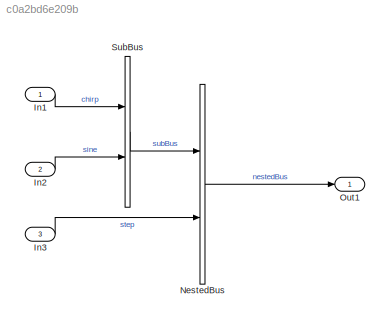
MODEL slx_c0a2bd6e209b
KIND model
CONFIG AbsTol = auto
CONFIG EnableMultiTasking = off
CONFIG FixedStep = 0.200000
CONFIG MaxStep = auto
CONFIG MinStep = auto
CONFIG RelTol = 1e-3
CONFIG SampleTimeConstraint = Unconstrained
CONFIG Solver = FixedStepDiscrete
CONFIG SolverName = FixedStepDiscrete
CONFIG StartTime = 0.0
CONFIG StopTime = 10.0
BLOCK [Inport] In1
  IconDisplay = Port number
  PortDimensions = 2
BLOCK [Inport] In2
  IconDisplay = Port number
  Port = 2
  PortDimensions = 3
BLOCK [Inport] In3
  IconDisplay = Port number
  Port = 3
  PortDimensions = 4
BLOCK [BusCreator] NestedBus
  AttributesFormatString = NestedBus
  DisplayOption = bar
  InheritFromInputs = on
  Inputs = 2
  Ports = [2, 1]
BLOCK [Outport] Out1
  IconDisplay = Port number
BLOCK [BusCreator] SubBus
  AttributesFormatString = SubBus
  DisplayOption = bar
  InheritFromInputs = on
  Inputs = 2
  Ports = [2, 1]
LINE In1:1 -> SubBus:1
LINE In2:1 -> SubBus:2
LINE In3:1 -> NestedBus:2
LINE NestedBus:1 -> Out1:1
LINE SubBus:1 -> NestedBus:1
